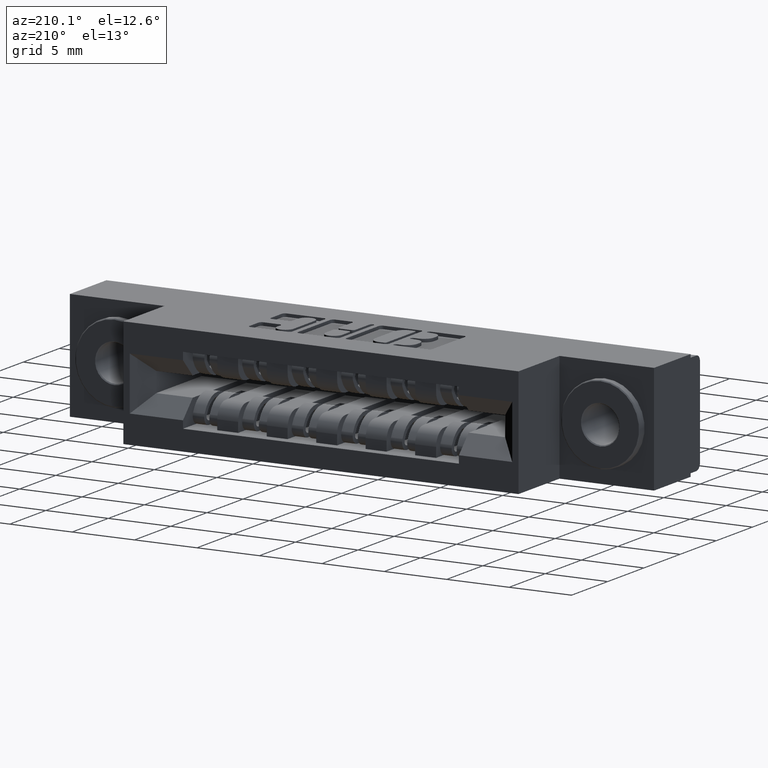
[diagram: clean part render]
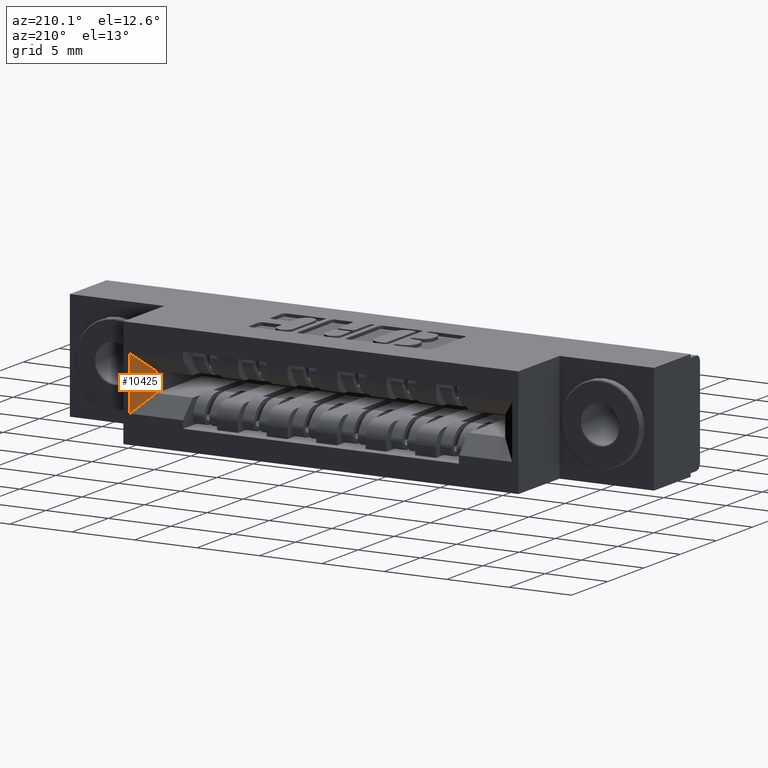
[diagram: same view with one face highlighted and labeled with its STEP entity id]
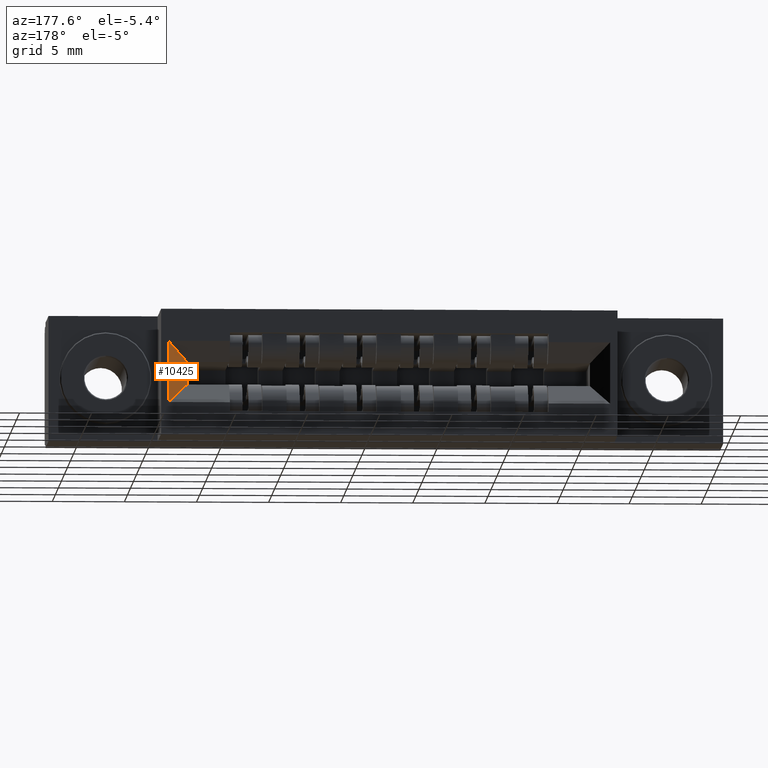
[diagram: same view with one face highlighted and labeled with its STEP entity id]
A machine part, auxiliary view. The second image highlights one B-rep face of the part: STEP entity #10425.
A second angle (auxiliary view) of the same face is appended — the face is thin or edge-on in the first view.
In plain terms, the highlighted planar face has unit normal (0.7071, -0.7071, 0).
Its self-contained STEP definition (entity closure, byte-faithful):
#601 = ORIENTED_EDGE ( 'NONE', *, *, #990, .F. ) ;
#610 = DIRECTION ( 'NONE',  ( 0.5773502691896267300, 0.5773502691896237300, -0.5773502691896267300 ) ) ;
#696 = CARTESIAN_POINT ( 'NONE',  ( 1.471000000000000800, 0.4200000000000000400, -0.1405000000000001200 ) ) ;
#758 = LINE ( 'NONE', #9244, #9402 ) ;
#827 = VECTOR ( 'NONE', #9903, 39.37007874015748900 ) ;
#990 = EDGE_CURVE ( 'NONE', #4910, #6192, #11113, .T. ) ;
#1027 = EDGE_CURVE ( 'NONE', #8221, #4910, #7050, .T. ) ;
#1629 = DIRECTION ( 'NONE',  ( 0.7071067811865456900, -0.7071067811865493500, 0.0000000000000000000 ) ) ;
#1663 = VECTOR ( 'NONE', #610, 39.37007874015748900 ) ;
#2513 = CARTESIAN_POINT ( 'NONE',  ( 1.104333333333332500, 0.05333333333333362800, 0.1641666666666682100 ) ) ;
#2853 = CARTESIAN_POINT ( 'NONE',  ( 1.524000000000000900, 0.4729999999999999800, -0.2555000000000003400 ) ) ;
#2894 = ORIENTED_EDGE ( 'NONE', *, *, #3186, .F. ) ;
#3055 = CARTESIAN_POINT ( 'NONE',  ( 1.524000000000000900, 0.4729999999999999800, -0.08749999999999988300 ) ) ;
#3186 = EDGE_CURVE ( 'NONE', #6192, #4384, #758, .T. ) ;
#3615 = EDGE_LOOP ( 'NONE', ( #6052, #2894, #601, #10410 ) ) ;
#4209 = DIRECTION ( 'NONE',  ( 0.0000000000000000000, 0.0000000000000000000, -1.000000000000000000 ) ) ;
#4213 = AXIS2_PLACEMENT_3D ( 'NONE', #9339, #1629, #5977 ) ;
#4384 = VERTEX_POINT ( 'NONE', #3055 ) ;
#4735 = CARTESIAN_POINT ( 'NONE',  ( 1.471000000000000800, 0.4199999999999999800, -0.2025000000000001000 ) ) ;
#4910 = VERTEX_POINT ( 'NONE', #4735 ) ;
#5977 = DIRECTION ( 'NONE',  ( 0.7071067811865493500, 0.7071067811865456900, 0.0000000000000000000 ) ) ;
#6052 = ORIENTED_EDGE ( 'NONE', *, *, #9437, .T. ) ;
#6192 = VERTEX_POINT ( 'NONE', #2853 ) ;
#6919 = PLANE ( 'NONE',  #4213 ) ;
#7050 = LINE ( 'NONE', #696, #8387 ) ;
#8221 = VERTEX_POINT ( 'NONE', #10232 ) ;
#8387 = VECTOR ( 'NONE', #4209, 39.37007874015748100 ) ;
#8898 = FACE_OUTER_BOUND ( 'NONE', #3615, .T. ) ;
#9244 = CARTESIAN_POINT ( 'NONE',  ( 1.524000000000000900, 0.4729999999999999800, -0.3430000000000000300 ) ) ;
#9339 = CARTESIAN_POINT ( 'NONE',  ( 1.471000000000000800, 0.4200000000000000400, -0.1405000000000001200 ) ) ;
#9402 = VECTOR ( 'NONE', #10100, 39.37007874015748100 ) ;
#9437 = EDGE_CURVE ( 'NONE', #8221, #4384, #10298, .T. ) ;
#9903 = DIRECTION ( 'NONE',  ( 0.5773502691896267300, 0.5773502691896237300, 0.5773502691896267300 ) ) ;
#10100 = DIRECTION ( 'NONE',  ( 0.0000000000000000000, 0.0000000000000000000, 1.000000000000000000 ) ) ;
#10232 = CARTESIAN_POINT ( 'NONE',  ( 1.471000000000000800, 0.4199999999999999800, -0.1405000000000001200 ) ) ;
#10298 = LINE ( 'NONE', #10773, #827 ) ;
#10410 = ORIENTED_EDGE ( 'NONE', *, *, #1027, .F. ) ;
#10425 = ADVANCED_FACE ( 'NONE', ( #8898 ), #6919, .F. ) ;
#10773 = CARTESIAN_POINT ( 'NONE',  ( 1.471000000000000800, 0.4200000000000000400, -0.1405000000000001200 ) ) ;
#11113 = LINE ( 'NONE', #2513, #1663 ) ;